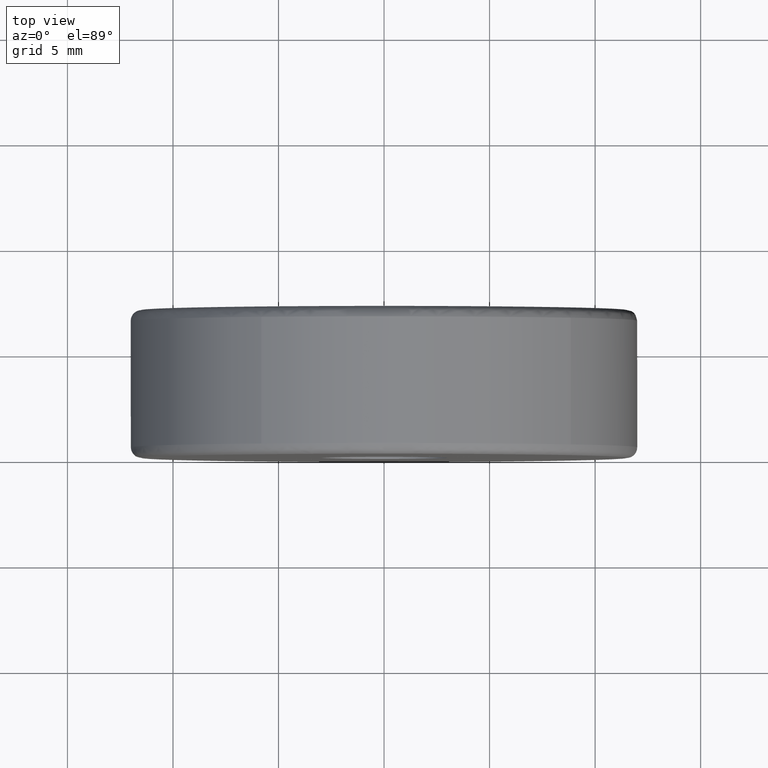
[diagram: clean part render]
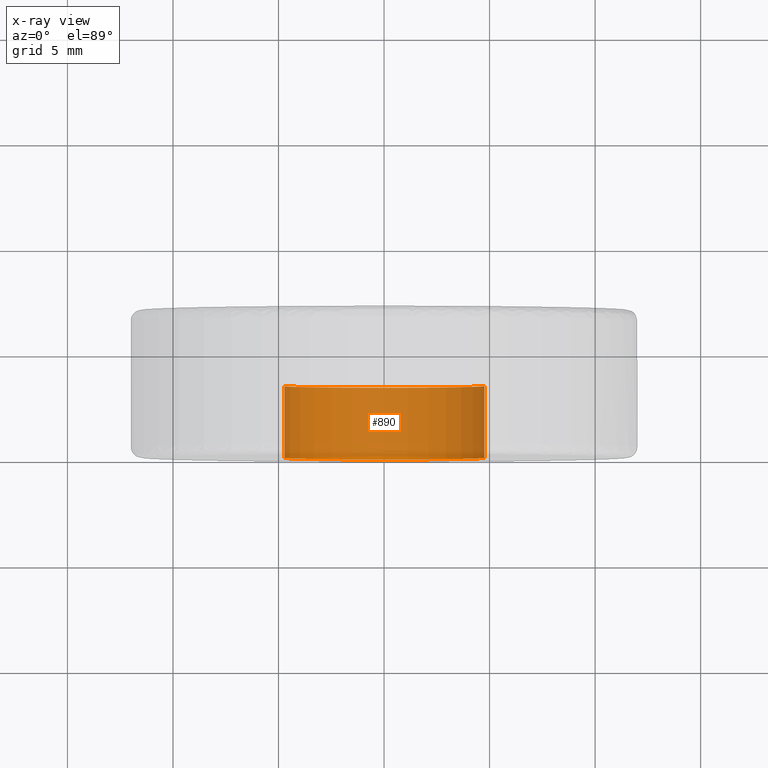
[diagram: x-ray — body ghosted, one internal face saturated and labeled with its STEP entity id]
A machine part, top view, then the same camera in x-ray: the body is ghosted and one INTERNAL B-rep face — a face not visible from any outside direction — is saturated and labeled: STEP entity #890.
In plain terms, the highlighted face is a freeform B-spline surface patch.
Its self-contained STEP definition (entity closure, byte-faithful):
#788=CARTESIAN_POINT('',(-4.726725345491053,3.484999999999961,0.561842956966170));
#789=CARTESIAN_POINT('',(-4.742805049535363,3.484999999999960,0.426566108316774));
#790=CARTESIAN_POINT('',(-4.751121640488086,3.484999999999960,0.290591048185919));
#791=CARTESIAN_POINT('',(-5.041712688674005,3.484999999999960,-4.460530592302168));
#792=CARTESIAN_POINT('',(-0.290591048185919,3.484999999999960,-4.751121640488086));
#793=CARTESIAN_POINT('',(4.460530592302168,3.484999999999960,-5.041712688674005));
#794=CARTESIAN_POINT('',(4.751121640488086,3.484999999999960,-0.290591048185919));
#795=CARTESIAN_POINT('',(-4.726725345491053,-0.087124999999999,0.561842956966170));
#796=CARTESIAN_POINT('',(-4.742805049535363,-0.087124999999999,0.426566108316774));
#797=CARTESIAN_POINT('',(-4.751121640488086,-0.087124999999999,0.290591048185919));
#798=CARTESIAN_POINT('',(-5.041712688674005,-0.087124999999999,-4.460530592302168));
#799=CARTESIAN_POINT('',(-0.290591048185919,-0.087124999999999,-4.751121640488086));
#800=CARTESIAN_POINT('',(4.460530592302168,-0.087124999999999,-5.041712688674005));
#801=CARTESIAN_POINT('',(4.751121640488086,-0.087124999999999,-0.290591048185919));
#809=(BOUNDED_SURFACE()B_SPLINE_SURFACE(2,1,((#788,#795),(#789,#796),(#790,#797),(#791,#798),(#792,#799),(#793,#800),(#794,#801)),.UNSPECIFIED.,.F.,.F.,.U.)B_SPLINE_SURFACE_WITH_KNOTS((3,2,2,3),(2,2),(0.0,0.315465049103350,8.202091276687078,16.088717504270800),(0.0,3.572124999999959),.UNSPECIFIED.)GEOMETRIC_REPRESENTATION_ITEM()RATIONAL_B_SPLINE_SURFACE(((0.977505800795127,0.977505800795127),(0.988284271247462,0.988284271247462),(1.0,1.0),(0.707106781186548,0.707106781186548),(1.0,1.0),(0.707106781186548,0.707106781186548),(1.0,1.0)))REPRESENTATION_ITEM('')SURFACE());
#810=CARTESIAN_POINT('',(-4.726725345488690,3.399999999999960,0.561842956986043));
#811=VERTEX_POINT('',#810);
#812=CARTESIAN_POINT('',(0.0,3.399999999999960,-4.760000000000001));
#813=VERTEX_POINT('',#812);
#814=CARTESIAN_POINT('',(-4.726725345488690,3.399999999999960,0.561842956986043));
#815=CARTESIAN_POINT('',(-4.760000000000001,3.399999999999961,0.281906809563175));
#816=CARTESIAN_POINT('',(-4.760000000000001,3.399999999999960,0.0));
#817=CARTESIAN_POINT('',(-4.760000000000001,3.399999999999959,-4.760000000000001));
#818=CARTESIAN_POINT('',(0.0,3.399999999999960,-4.760000000000001));
#826=(BOUNDED_CURVE()B_SPLINE_CURVE(2,(#814,#815,#816,#817,#818),.UNSPECIFIED.,.F.,.U.)B_SPLINE_CURVE_WITH_KNOTS((3,2,3),(0.229562473514223,0.250000000000000,0.500000000000000),.UNSPECIFIED.)CURVE()GEOMETRIC_REPRESENTATION_ITEM()RATIONAL_B_SPLINE_CURVE((0.956026754185100,0.976055948331983,1.0,0.707106781186548,1.0))REPRESENTATION_ITEM(''));
#827=EDGE_CURVE('',#811,#813,#826,.T.);
#828=ORIENTED_EDGE('',*,*,#827,.F.);
#829=CARTESIAN_POINT('',(-4.726725345488690,2.839428E-017,0.561842956986043));
#830=VERTEX_POINT('',#829);
#831=CARTESIAN_POINT('',(-4.726725345488690,3.399999999999960,0.561842956986043));
#832=CARTESIAN_POINT('',(-4.726725345488690,2.839428E-017,0.561842956986043));
#833=QUASI_UNIFORM_CURVE('',1,(#831,#832),.UNSPECIFIED.,.F.,.U.);
#834=EDGE_CURVE('',#811,#830,#833,.T.);
#835=ORIENTED_EDGE('',*,*,#834,.T.);
#836=CARTESIAN_POINT('',(0.0,0.0,-4.760000000000001));
#837=VERTEX_POINT('',#836);
#838=CARTESIAN_POINT('',(-4.726725345488690,2.839428E-017,0.561842956986043));
#839=CARTESIAN_POINT('',(-4.760000000000001,0.0,0.281906809563175));
#840=CARTESIAN_POINT('',(-4.760000000000001,0.0,0.0));
#841=CARTESIAN_POINT('',(-4.760000000000001,0.0,-4.760000000000001));
#842=CARTESIAN_POINT('',(0.0,0.0,-4.760000000000001));
#850=(BOUNDED_CURVE()B_SPLINE_CURVE(2,(#838,#839,#840,#841,#842),.UNSPECIFIED.,.F.,.U.)B_SPLINE_CURVE_WITH_KNOTS((3,2,3),(0.229562473514223,0.250000000000000,0.500000000000000),.UNSPECIFIED.)CURVE()GEOMETRIC_REPRESENTATION_ITEM()RATIONAL_B_SPLINE_CURVE((0.956026754185100,0.976055948331983,1.0,0.707106781186548,1.0))REPRESENTATION_ITEM(''));
#851=EDGE_CURVE('',#830,#837,#850,.T.);
#852=ORIENTED_EDGE('',*,*,#851,.T.);
#853=CARTESIAN_POINT('',(4.751121640486563,2.775558E-017,-0.290591048210843));
#854=VERTEX_POINT('',#853);
#855=CARTESIAN_POINT('',(0.0,0.0,-4.760000000000001));
#856=CARTESIAN_POINT('',(4.477760878424028,0.0,-4.760000000000001));
#857=CARTESIAN_POINT('',(4.751121640486563,2.775558E-017,-0.290591048210843));
#865=(BOUNDED_CURVE()B_SPLINE_CURVE(2,(#855,#856,#857),.UNSPECIFIED.,.F.,.U.)B_SPLINE_CURVE_WITH_KNOTS((3,3),(0.500000000000000,0.739332962240157),.UNSPECIFIED.)CURVE()GEOMETRIC_REPRESENTATION_ITEM()RATIONAL_B_SPLINE_CURVE((1.0,0.719603993285287,0.976072041669321))REPRESENTATION_ITEM(''));
#866=EDGE_CURVE('',#837,#854,#865,.T.);
#867=ORIENTED_EDGE('',*,*,#866,.T.);
#868=CARTESIAN_POINT('',(4.751121640486563,3.399999999999960,-0.290591048210843));
#869=VERTEX_POINT('',#868);
#870=CARTESIAN_POINT('',(4.751121640486563,3.399999999999960,-0.290591048210843));
#871=CARTESIAN_POINT('',(4.751121640486563,2.775558E-017,-0.290591048210843));
#872=QUASI_UNIFORM_CURVE('',1,(#870,#871),.UNSPECIFIED.,.F.,.U.);
#873=EDGE_CURVE('',#869,#854,#872,.T.);
#874=ORIENTED_EDGE('',*,*,#873,.F.);
#875=CARTESIAN_POINT('',(0.0,3.399999999999960,-4.760000000000001));
#876=CARTESIAN_POINT('',(4.477760878424028,3.399999999999960,-4.760000000000001));
#877=CARTESIAN_POINT('',(4.751121640486563,3.399999999999960,-0.290591048210843));
#885=(BOUNDED_CURVE()B_SPLINE_CURVE(2,(#875,#876,#877),.UNSPECIFIED.,.F.,.U.)B_SPLINE_CURVE_WITH_KNOTS((3,3),(0.500000000000000,0.739332962240157),.UNSPECIFIED.)CURVE()GEOMETRIC_REPRESENTATION_ITEM()RATIONAL_B_SPLINE_CURVE((1.0,0.719603993285287,0.976072041669321))REPRESENTATION_ITEM(''));
#886=EDGE_CURVE('',#813,#869,#885,.T.);
#887=ORIENTED_EDGE('',*,*,#886,.F.);
#888=EDGE_LOOP('',(#828,#835,#852,#867,#874,#887));
#889=FACE_OUTER_BOUND('',#888,.T.);
#890=ADVANCED_FACE('',(#889),#809,.F.);